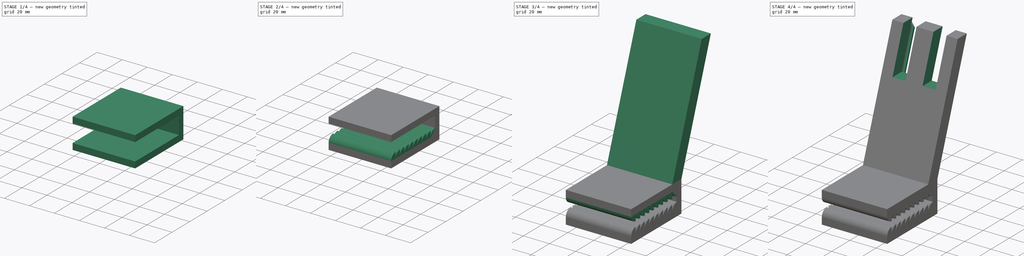
[diagram: build sequence overview — one tinted view per stage of 4, left to right]
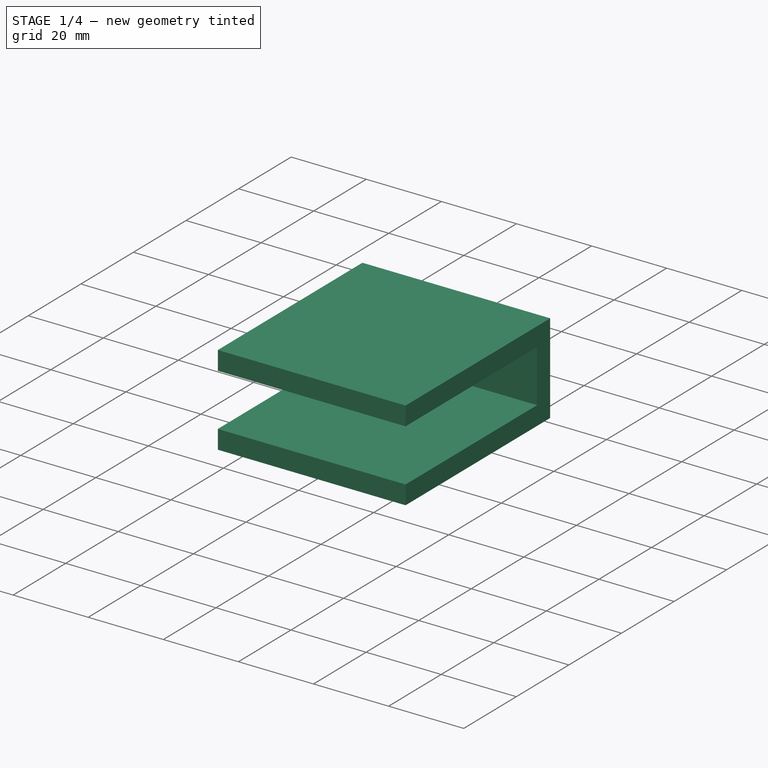
[diagram: stage 1 of 4 — iso view after this stage's code; geometry added in this stage tinted green]
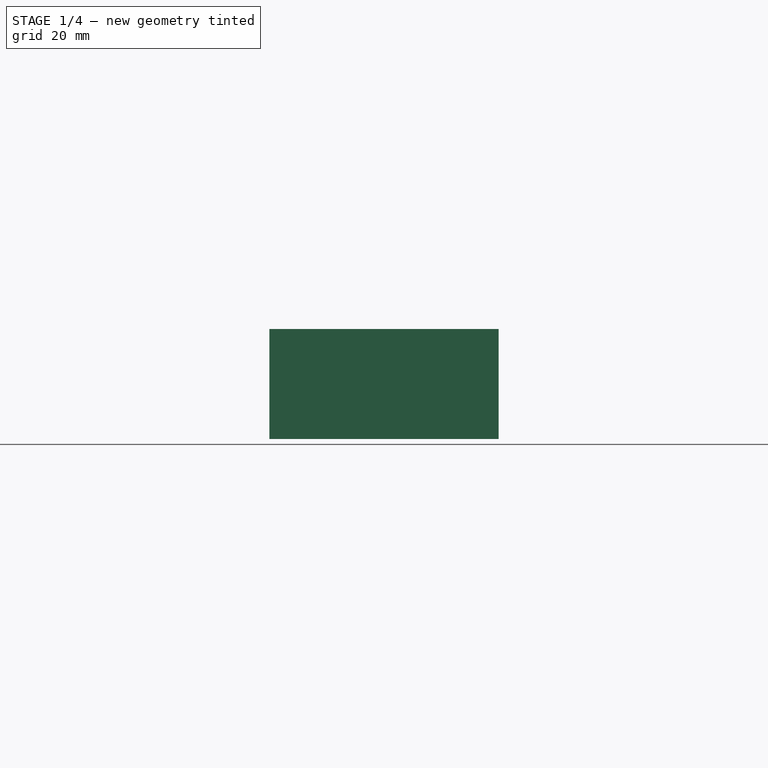
[diagram: stage 1 of 4 — front view after this stage's code; geometry added in this stage tinted green]
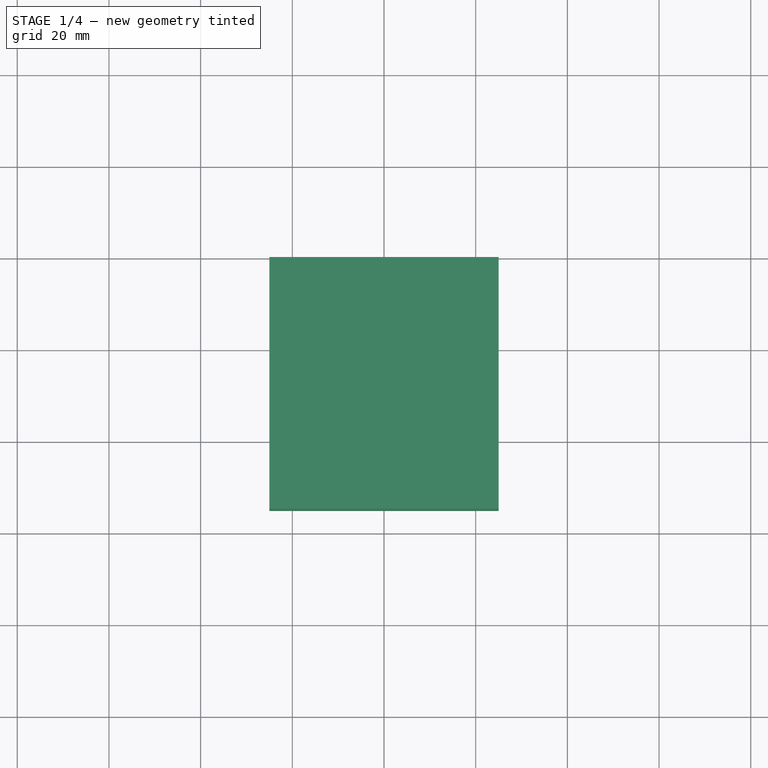
[diagram: stage 1 of 4 — top view after this stage's code; geometry added in this stage tinted green]
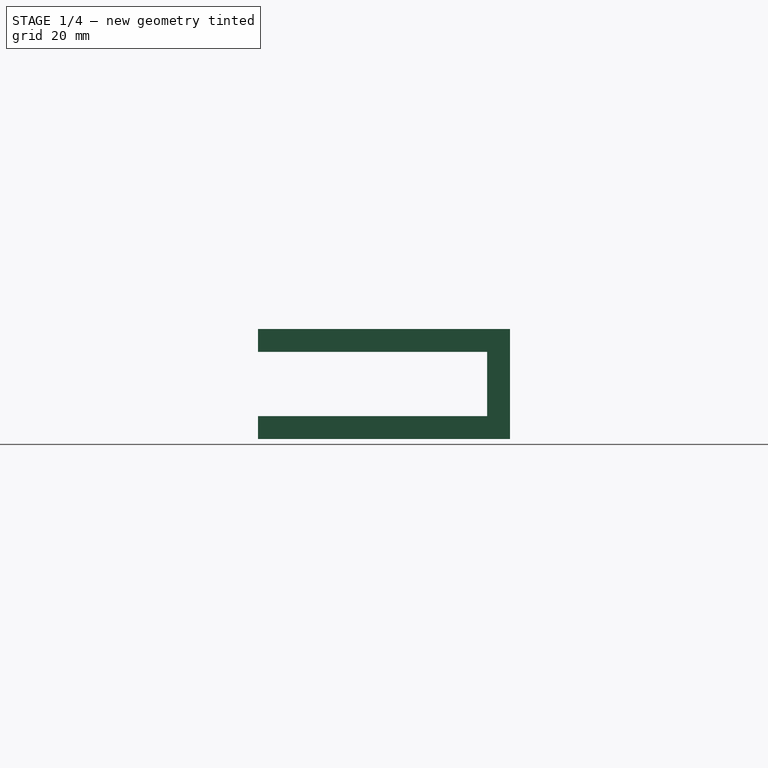
[diagram: stage 1 of 4 — right view after this stage's code; geometry added in this stage tinted green]
FCSTD DOCUMENT  (FreeCAD 1.0R39109 (Git))
Label: support_camera_v1
License: All rights reserved
LicenseURL: https://en.wikipedia.org/wiki/All_rights_reserved
objects: Sketcher::SketchObject×7, PartDesign::Pad×6, PartDesign::LinearPattern×1, PartDesign::Mirrored×1, PartDesign::Pocket×1, PartDesign::Body×1
note: 40 computed .brp shape members not serialized (recipe doc carries the construction recipe); baked Part::Feature solids carry a one-line shape summary decoded from their .brp

FEATURE [Sketcher::SketchObject] Sketch
  ArcFitTolerance = 1e-06
  AttachmentSupport = -> [XZ_Plane]
  FullyConstrained = true
  MakeInternals = false
  MapMode = 5
  Placement = pos=(0,0,0) rot=(1,0,0;1.5708rad)
  sketch-geometry (8):
    g0: LineSegment StartX=-25 StartY=12 StartZ=0 EndX=-25 EndY=-12 EndZ=0
    g1: LineSegment StartX=-25 StartY=-12 StartZ=0 EndX=25 EndY=-12 EndZ=0
    g2: LineSegment StartX=25 StartY=-12 StartZ=0 EndX=25 EndY=12 EndZ=0
    g3: LineSegment StartX=25 StartY=12 StartZ=0 EndX=-25 EndY=12 EndZ=0
    g4: GeomPoint X=25 Y=2 Z=0
    g5: GeomPoint X=25 Y=-2 Z=0
    g6: LineSegment [constr] StartX=25 StartY=2 StartZ=0 EndX=-25 EndY=2 EndZ=0
    g7: LineSegment [constr] StartX=25 StartY=-2 StartZ=0 EndX=-25 EndY=-2 EndZ=0
  constraints (19):
    c: Coincident(g0,g1)
    c: Coincident(g1,g2)
    c: Coincident(g2,g3)
    c: Coincident(g3,g0)
    c: Vertical(g0)
    c: Horizontal(g1)
    c: Symmetric(g2,g0,g-2)
    c: Symmetric(g2,g1,g-1)
    c: PointOnObject(g4,g2)
    c: Symmetric(g4,g5,g-1)
    c: Coincident(g6,g4)
    c: PointOnObject(g6,g0)
    c: Horizontal(g6)
    c: Coincident(g7,g5)
    c: PointOnObject(g7,g0)
    c: Horizontal(g7)
    c: Distance(g4,g5) = 4  'epaisseur planche'
    c: Distance(g1) = 50  'largeur support'
    c: Distance(g4,g2) = 10
FEATURE [PartDesign::Pad] Pad
  Direction = (0,-1,2e-16)
  Length = 5
  Length2 = 10
  Placement = pos=(0,0,0) rot=(1,0,0;1.5708rad)
  Profile = -> Sketch
  ReferenceAxis = -> Sketch [N_Axis]
  Refine = true
  Suppressed = false
  Type = 0
FEATURE [Sketcher::SketchObject] Sketch001
  ArcFitTolerance = 1e-06
  AttachmentSupport = -> [Pad]
  ExternalGeometry = -> [Pad]
  FullyConstrained = true
  MakeInternals = false
  MapMode = 5
  Placement = pos=(0,-5,0) rot=(1,0,0;1.5708rad)
  sketch-geometry (12):
    g0: LineSegment [constr] StartX=-25 StartY=2 StartZ=0 EndX=-25 EndY=-2 EndZ=0
    g1: LineSegment [constr] StartX=-25 StartY=-2 StartZ=0 EndX=25 EndY=-2 EndZ=0
    g2: LineSegment [constr] StartX=25 StartY=-2 StartZ=0 EndX=25 EndY=2 EndZ=0
    g3: LineSegment [constr] StartX=25 StartY=2 StartZ=0 EndX=-25 EndY=2 EndZ=0
    g4: LineSegment StartX=-25 StartY=12 StartZ=0 EndX=-25 EndY=7 EndZ=0
    g5: LineSegment StartX=-25 StartY=7 StartZ=0 EndX=25 EndY=7 EndZ=0
    g6: LineSegment StartX=25 StartY=7 StartZ=0 EndX=25 EndY=12 EndZ=0
    g7: LineSegment StartX=25 StartY=12 StartZ=0 EndX=-25 EndY=12 EndZ=0
    g8: LineSegment StartX=-25 StartY=-12 StartZ=0 EndX=25 EndY=-12 EndZ=0
    g9: LineSegment StartX=25 StartY=-12 StartZ=0 EndX=25 EndY=-7 EndZ=0
    g10: LineSegment StartX=25 StartY=-7 StartZ=0 EndX=-25 EndY=-7 EndZ=0
    g11: LineSegment StartX=-25 StartY=-7 StartZ=0 EndX=-25 EndY=-12 EndZ=0
  constraints (32):
    c: Coincident(g0,g1)
    c: Coincident(g1,g2)
    c: Coincident(g2,g3)
    c: Coincident(g3,g0)
    c: Vertical(g0)
    c: Horizontal(g1)
    c: Horizontal(g3)
    c: PointOnObject(g0,g-6)
    c: PointOnObject(g1,g-4)
    c: Distance(g2) = 4
    c: Symmetric(g2,g1,g-1)
    c: Coincident(g4,g5)
    c: Coincident(g5,g6)
    c: Coincident(g6,g7)
    c: Coincident(g7,g4)
    c: Vertical(g4)
    c: Vertical(g6)
    c: Horizontal(g5)
    c: Horizontal(g7)
    c: Coincident(g4,g-6)
    c: PointOnObject(g5,g-4)
    c: Coincident(g8,g9)
    c: Coincident(g9,g10)
    c: Coincident(g10,g11)
    c: Coincident(g11,g8)
    c: Horizontal(g8)
    c: Horizontal(g10)
    c: Vertical(g9)
    c: Vertical(g11)
    c: Coincident(g8,g-6)
    c: Symmetric(g5,g9,g-1)
    c: Distance(g6) = 5
FEATURE [PartDesign::Pad] Pad001
  BaseFeature = -> Pad
  Direction = (0,-1,2e-16)
  Length = 50
  Length2 = 10
  Placement = pos=(0,0,0) rot=(1,0,0;1.5708rad)
  Profile = -> Sketch001
  ReferenceAxis = -> Sketch001 [N_Axis]
  Refine = true
  Suppressed = false
  Type = 0
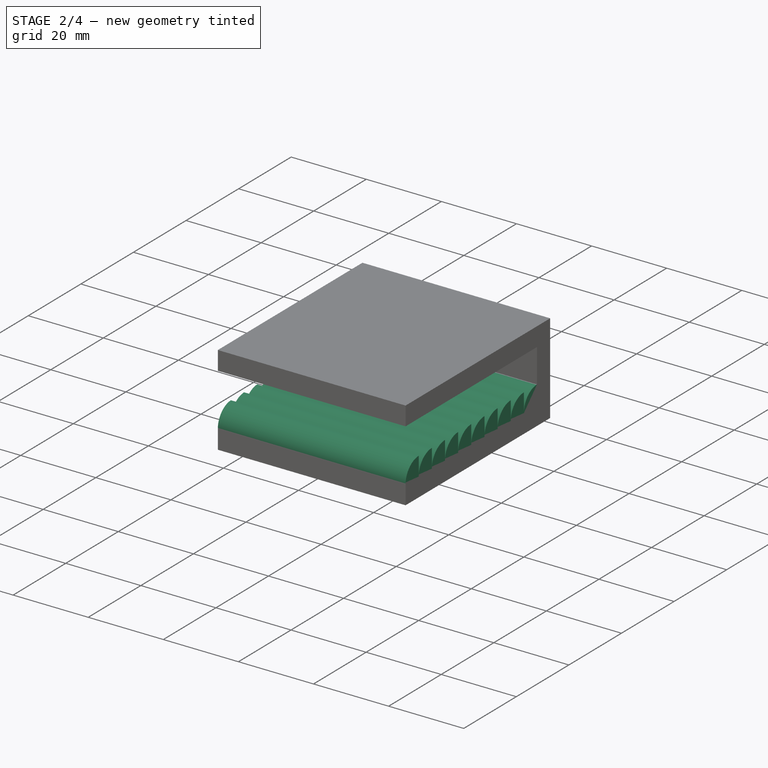
[diagram: stage 2 of 4 — iso view after this stage's code; geometry added in this stage tinted green]
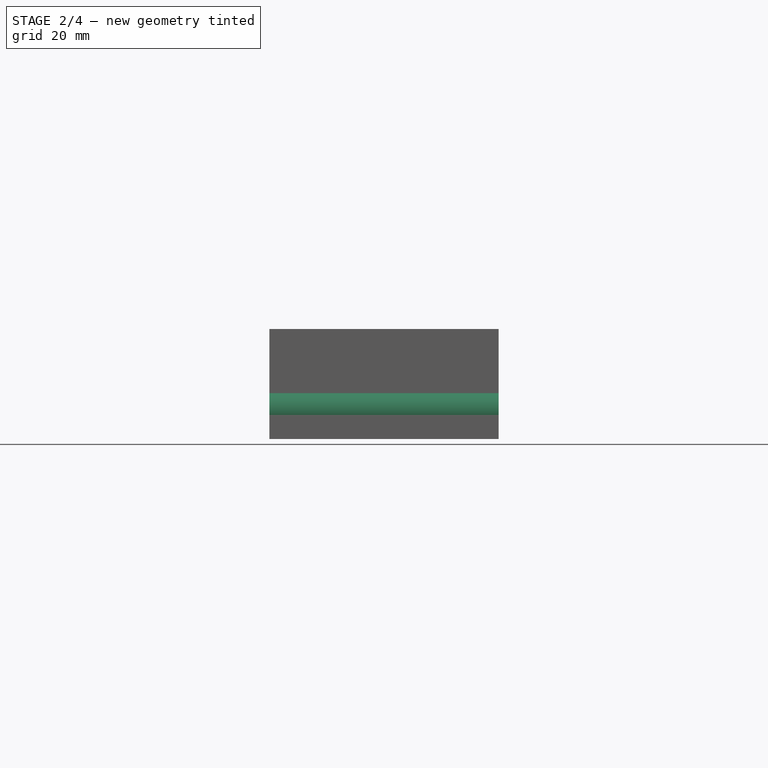
[diagram: stage 2 of 4 — front view after this stage's code; geometry added in this stage tinted green]
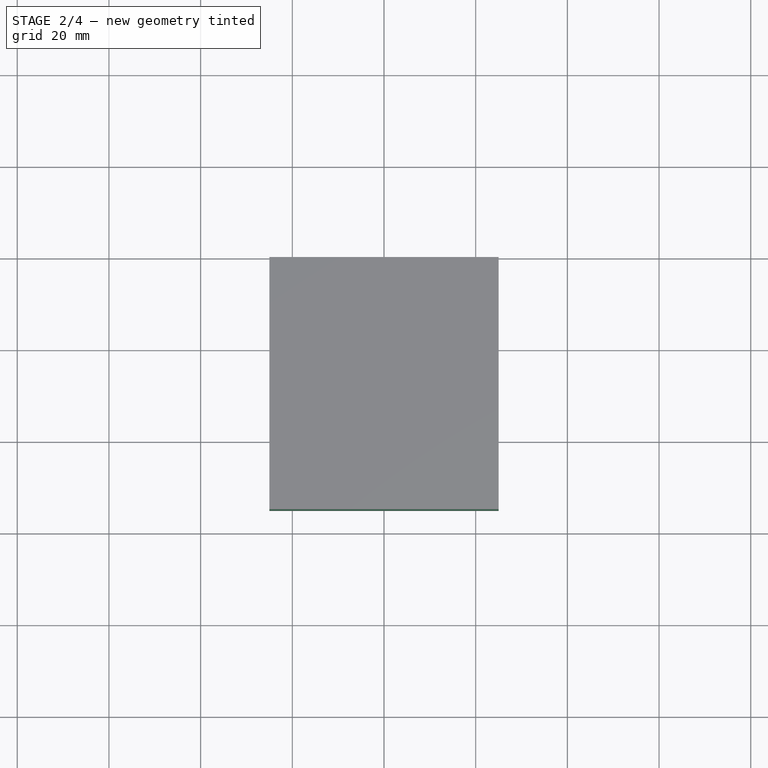
[diagram: stage 2 of 4 — top view after this stage's code; geometry added in this stage tinted green]
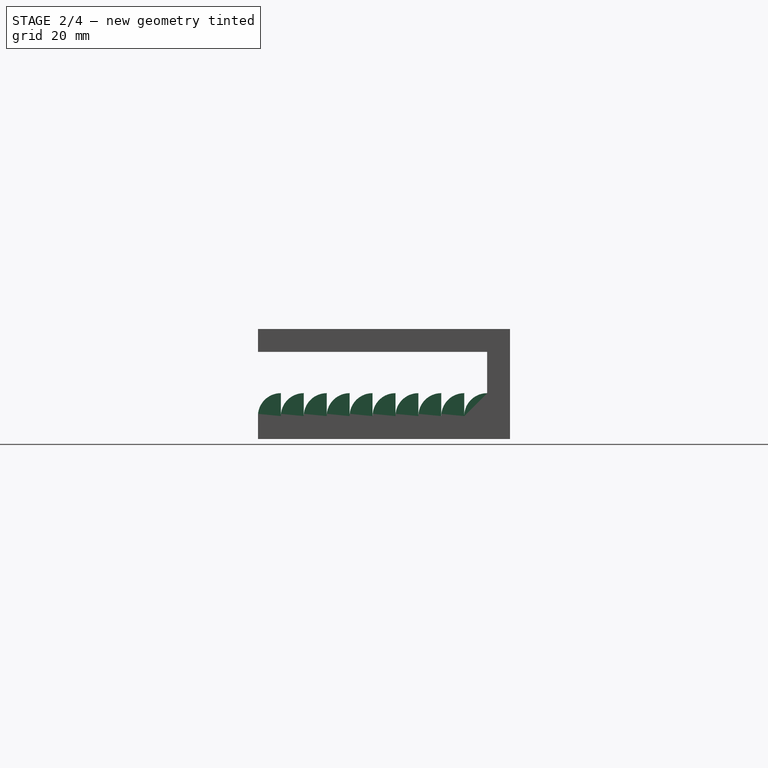
[diagram: stage 2 of 4 — right view after this stage's code; geometry added in this stage tinted green]
FEATURE [Sketcher::SketchObject] Sketch002
  ArcFitTolerance = 1e-06
  AttachmentSupport = -> [Pad001]
  ExternalGeometry = -> [Pad001]
  FullyConstrained = true
  MakeInternals = false
  MapMode = 5
  Placement = pos=(25,0,0) rot=(0.707107,0,0.707107;3.14159rad)
  sketch-geometry (3):
    g0: ArcOfCircle CenterX=-7 CenterY=50 CenterZ=0 NormalX=0 NormalY=0 NormalZ=1 AngleXU=0 Radius=5 StartAngle=5e-16 EndAngle=1.5708
    g1: LineSegment StartX=-7 StartY=50 StartZ=0 EndX=-2 EndY=50 EndZ=0
    g2: LineSegment StartX=-7 StartY=55 StartZ=0 EndX=-7 EndY=50 EndZ=0
  constraints (8):
    c: PointOnObject(g0,g-3)
    c: Coincident(g0,g-3)
    c: Coincident(g1,g0)
    c: Coincident(g1,g0)
    c: Horizontal(g1)
    c: Distance(g1) = 5
    c: Coincident(g2,g0)
    c: Coincident(g2,g0)
FEATURE [PartDesign::Pad] Pad002
  BaseFeature = -> Pad001
  Direction = (1,0,-2e-16)
  Length = 50
  Length2 = 10
  Placement = pos=(0,0,0) rot=(1,0,0;1.5708rad)
  Profile = -> Sketch002
  ReferenceAxis = -> Sketch002 [N_Axis]
  Refine = true
  Reversed = true
  Suppressed = false
  Type = 0
FEATURE [PartDesign::LinearPattern] LinearPattern
  BaseFeature = -> Pad002
  Direction = -> Y_Axis
  Length = 45
  Mode = 0
  Occurrences = 10
  Offset = 5
  Originals = -> [Pad002]
  Placement = pos=(0,0,0) rot=(1,0,0;1.5708rad)
  Refine = true
  Suppressed = false
  TransformMode = 0
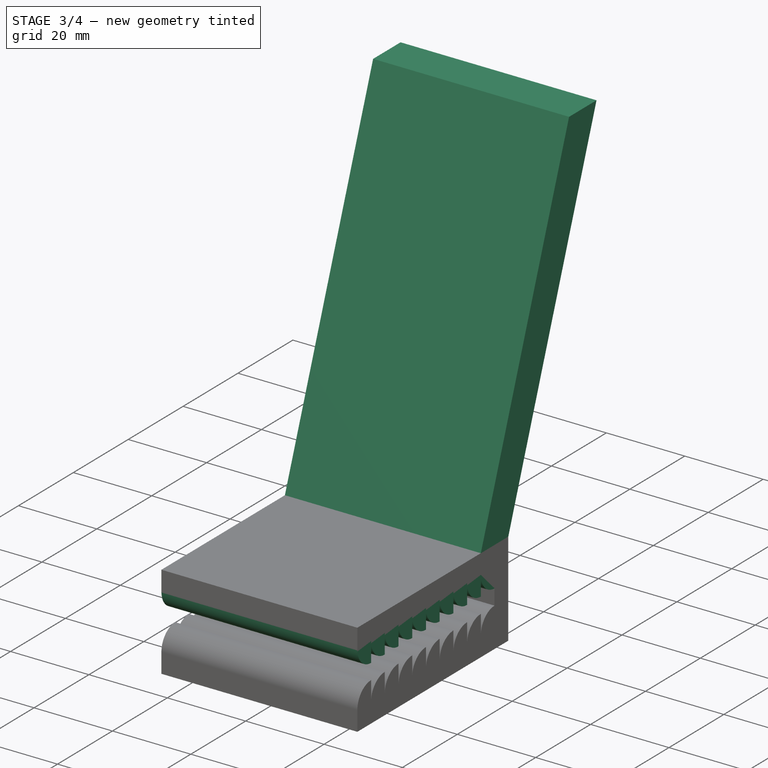
[diagram: stage 3 of 4 — iso view after this stage's code; geometry added in this stage tinted green]
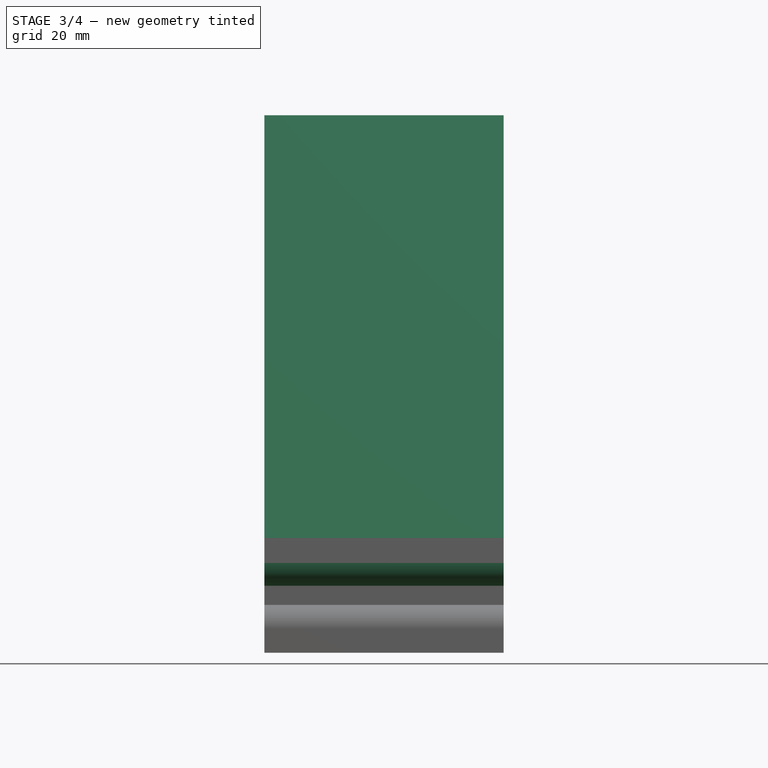
[diagram: stage 3 of 4 — front view after this stage's code; geometry added in this stage tinted green]
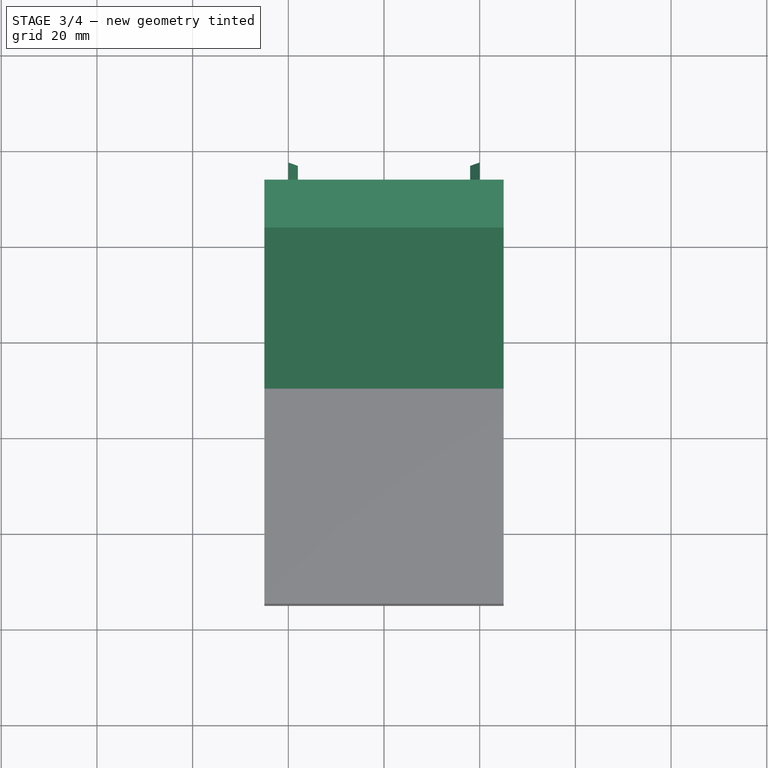
[diagram: stage 3 of 4 — top view after this stage's code; geometry added in this stage tinted green]
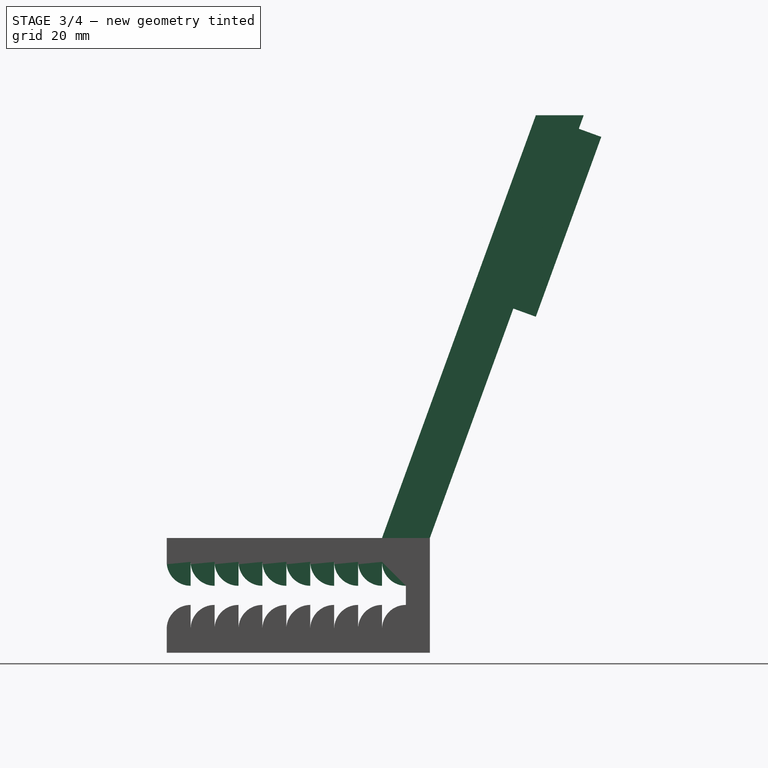
[diagram: stage 3 of 4 — right view after this stage's code; geometry added in this stage tinted green]
FEATURE [PartDesign::Mirrored] Mirrored
  BaseFeature = -> LinearPattern
  MirrorPlane = -> XY_Plane
  Originals = -> [LinearPattern]
  Placement = pos=(0,0,0) rot=(1,0,0;1.5708rad)
  Refine = true
  Suppressed = false
  TransformMode = 1
FEATURE [Sketcher::SketchObject] Sketch003
  ArcFitTolerance = 1e-06
  AttachmentSupport = -> [Mirrored]
  ExternalGeometry = -> [Mirrored]
  FullyConstrained = false
  MakeInternals = false
  MapMode = 5
  Placement = pos=(25,0,0) rot=(0.707107,0,0.707107;3.14159rad)
  sketch-geometry (4):
    g0: LineSegment StartX=12 StartY=10 StartZ=0 EndX=100.354 EndY=-22.1583 EndZ=0
    g1: LineSegment StartX=100.354 StartY=-22.1583 StartZ=0 EndX=100.354 EndY=-32.1583 EndZ=0
    g2: LineSegment StartX=100.354 StartY=-32.1583 StartZ=0 EndX=12 EndY=0 EndZ=0
    g3: LineSegment StartX=12 StartY=10 StartZ=0 EndX=12 EndY=0 EndZ=0
  constraints (10):
    c: Coincident(g1,g0)
    c: Coincident(g2,g1)
    c: Coincident(g3,g0)
    c: Coincident(g3,g2)
    c: Parallel(g0,g2)
    c: Coincident(g2,g-3)
    c: PointOnObject(g0,g-4)
    c: Distance(g0,g2) = 10
    c: Equal(g3,g1)
    c: Angle(g-1,g2) = 2.79253
FEATURE [PartDesign::Pad] Pad003
  BaseFeature = -> Mirrored
  Direction = (1,0,-2e-16)
  Length = 50
  Length2 = 10
  Placement = pos=(0,0,0) rot=(1,0,0;1.5708rad)
  Profile = -> Sketch003
  ReferenceAxis = -> Sketch003 [N_Axis]
  Refine = true
  Reversed = true
  Suppressed = false
  Type = 0
FEATURE [Sketcher::SketchObject] Sketch004
  ArcFitTolerance = 1e-06
  AttachmentSupport = -> [Pad003]
  ExternalGeometry = -> [Pad003]
  FullyConstrained = true
  MakeInternals = false
  MapMode = 5
  Placement = pos=(3e-16,-3.85673,1.40373) rot=(-1,0,0;1.91986rad)
  sketch-geometry (12):
    g0: LineSegment StartX=-18 StartY=-64.301 StartZ=0 EndX=-18 EndY=-100.301 EndZ=0
    g1: LineSegment [constr] StartX=-18 StartY=-100.301 StartZ=0 EndX=18 EndY=-100.301 EndZ=0
    g2: LineSegment StartX=18 StartY=-100.301 StartZ=0 EndX=18 EndY=-64.301 EndZ=0
    g3: LineSegment StartX=18 StartY=-64.301 StartZ=0 EndX=-18 EndY=-64.301 EndZ=0
    g4: LineSegment StartX=-20 StartY=-62.301 StartZ=0 EndX=-20 EndY=-102.301 EndZ=0
    g5: LineSegment [constr] StartX=-20 StartY=-102.301 StartZ=0 EndX=20 EndY=-102.301 EndZ=0
    g6: LineSegment StartX=20 StartY=-102.301 StartZ=0 EndX=20 EndY=-62.301 EndZ=0
    g7: LineSegment StartX=20 StartY=-62.301 StartZ=0 EndX=-20 EndY=-62.301 EndZ=0
    g8: LineSegment [constr] StartX=-18 StartY=-64.301 StartZ=0 EndX=-20 EndY=-64.301 EndZ=0
    g9: LineSegment [constr] StartX=18 StartY=-64.301 StartZ=0 EndX=18 EndY=-62.301 EndZ=0
    g10: LineSegment StartX=-20 StartY=-102.301 StartZ=0 EndX=-18 EndY=-100.301 EndZ=0
    g11: LineSegment StartX=18 StartY=-100.301 StartZ=0 EndX=20 EndY=-102.301 EndZ=0
  constraints (32):
    c: Coincident(g0,g1)
    c: Coincident(g1,g2)
    c: Coincident(g2,g3)
    c: Coincident(g3,g0)
    c: Vertical(g0)
    c: Vertical(g2)
    c: Horizontal(g1)
    c: Symmetric(g2,g0,g-2)
    c: Distance(g3) = 36
    c: Equal(g3,g2)
    c: DistanceY(g-4,g1) = 5
    c: Coincident(g4,g5)
    c: Coincident(g5,g6)
    c: Coincident(g6,g7)
    c: Coincident(g7,g4)
    c: Vertical(g4)
    c: Vertical(g6)
    c: Horizontal(g5)
    c: Symmetric(g6,g4,g-2)
    c: Equal(g7,g6)
    c: DistanceX(g4,g0) = 2
    c: Coincident(g8,g0)
    c: PointOnObject(g8,g4)
    c: Horizontal(g8)
    c: Coincident(g9,g2)
    c: PointOnObject(g9,g7)
    c: Vertical(g9)
    c: Equal(g8,g9)
    c: Coincident(g10,g4)
    c: Coincident(g10,g0)
    c: Coincident(g11,g1)
    c: Coincident(g11,g5)
FEATURE [PartDesign::Pad] Pad004
  BaseFeature = -> Pad003
  Direction = (0,0.939693,-0.34202)
  Length = 5
  Length2 = 10
  Placement = pos=(0,0,0) rot=(1,0,0;1.5708rad)
  Profile = -> Sketch004
  ReferenceAxis = -> Sketch004 [N_Axis]
  Refine = true
  Suppressed = false
  Type = 0
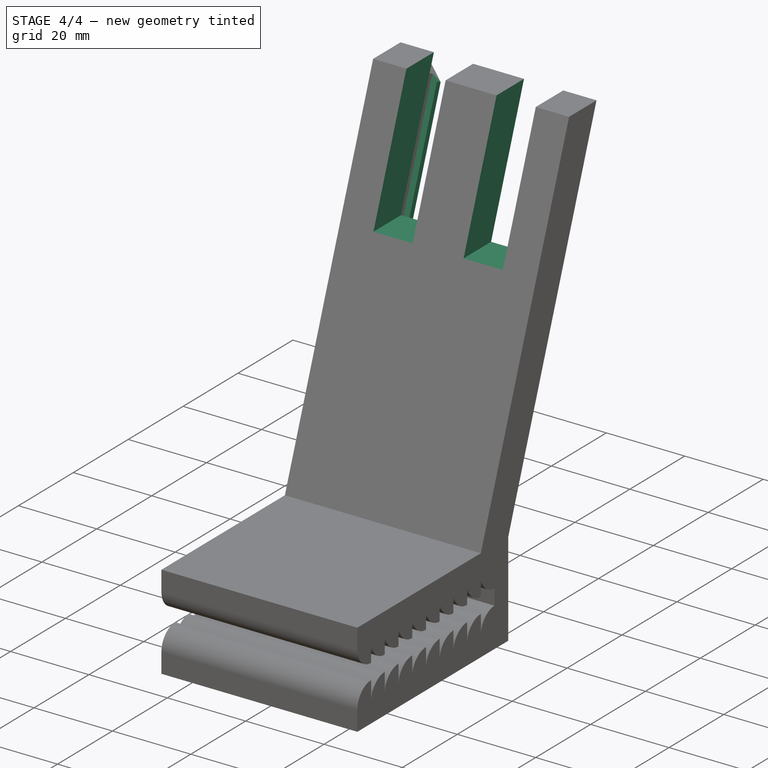
[diagram: stage 4 of 4 — iso view after this stage's code; geometry added in this stage tinted green]
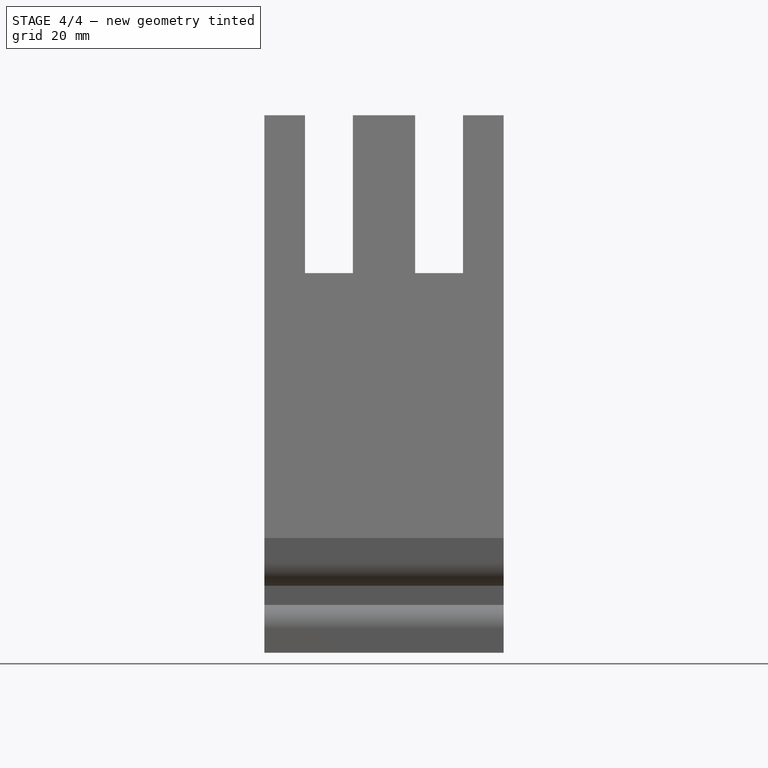
[diagram: stage 4 of 4 — front view after this stage's code; geometry added in this stage tinted green]
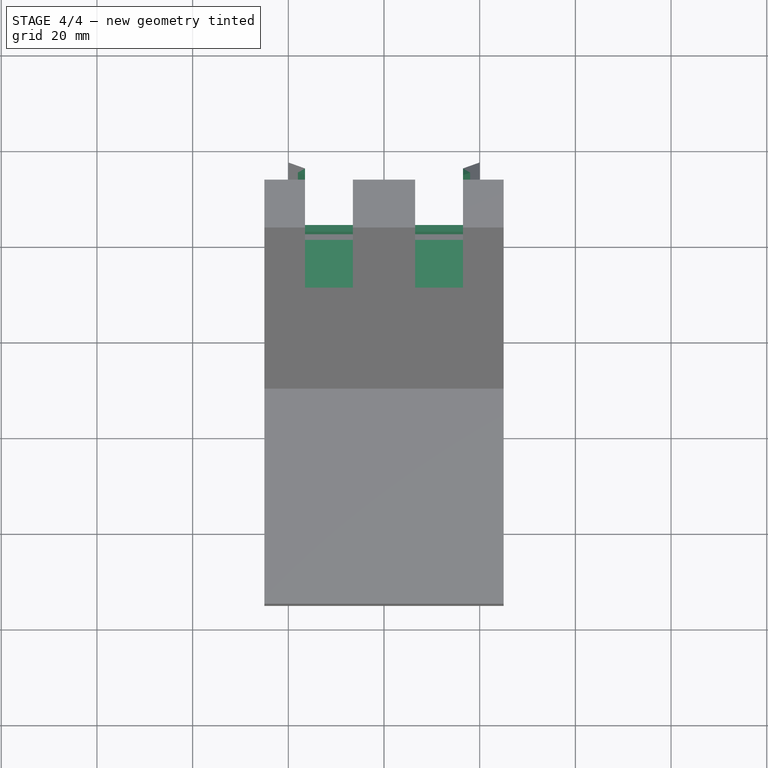
[diagram: stage 4 of 4 — top view after this stage's code; geometry added in this stage tinted green]
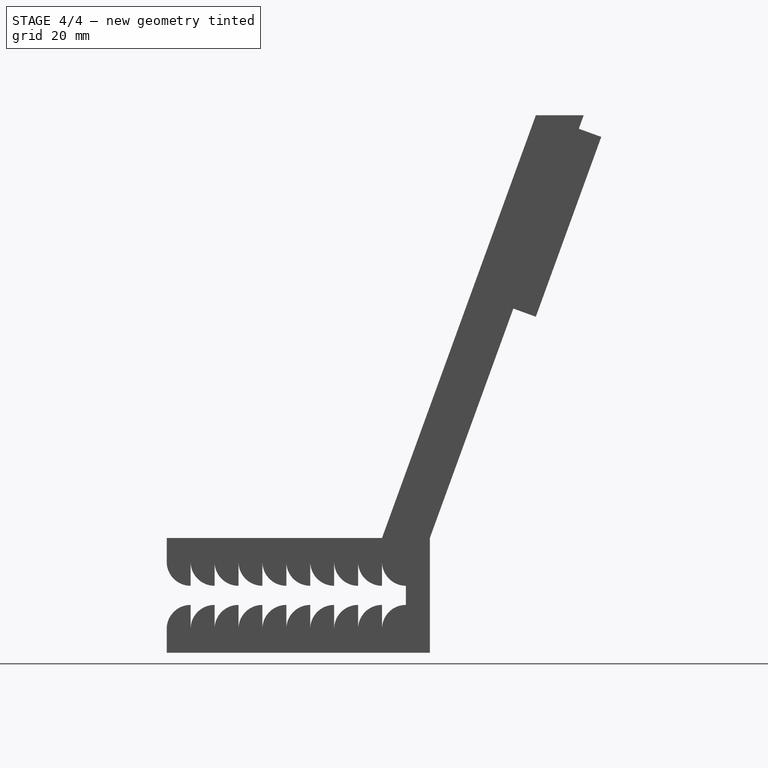
[diagram: stage 4 of 4 — right view after this stage's code; geometry added in this stage tinted green]
FEATURE [Sketcher::SketchObject] Sketch005
  ArcFitTolerance = 1e-06
  AttachmentSupport = -> [Pad004]
  ExternalGeometry = -> [Pad004]
  FullyConstrained = true
  MakeInternals = false
  MapMode = 5
  Placement = pos=(0,0.841737,-0.306367) rot=(-1,0,0;1.91986rad)
  sketch-geometry (11):
    g0: LineSegment StartX=-16.5 StartY=-98.801 StartZ=0 EndX=-16.5 EndY=-65.801 EndZ=0
    g1: LineSegment StartX=-16.5 StartY=-65.801 StartZ=0 EndX=16.5 EndY=-65.801 EndZ=0
    g2: LineSegment StartX=16.5 StartY=-65.801 StartZ=0 EndX=16.5 EndY=-98.801 EndZ=0
    g3: LineSegment StartX=16.5 StartY=-98.801 StartZ=0 EndX=18 EndY=-100.301 EndZ=0
    g4: LineSegment StartX=18 StartY=-100.301 StartZ=0 EndX=18 EndY=-64.301 EndZ=0
    g5: LineSegment StartX=18 StartY=-64.301 StartZ=0 EndX=-18 EndY=-64.301 EndZ=0
    g6: LineSegment StartX=-18 StartY=-64.301 StartZ=0 EndX=-18 EndY=-100.301 EndZ=0
    g7: LineSegment StartX=-18 StartY=-100.301 StartZ=0 EndX=-16.5 EndY=-98.801 EndZ=0
    g8: LineSegment [constr] StartX=-16.5 StartY=-65.801 StartZ=0 EndX=-16.5 EndY=-64.301 EndZ=0
    g9: LineSegment [constr] StartX=-16.5 StartY=-65.801 StartZ=0 EndX=-18 EndY=-65.801 EndZ=0
    g10: LineSegment [constr] StartX=16.5 StartY=-65.801 StartZ=0 EndX=18 EndY=-65.801 EndZ=0
  constraints (28):
    c: Vertical(g0)
    c: Coincident(g0,g1)
    c: Horizontal(g1)
    c: Coincident(g1,g2)
    c: Vertical(g2)
    c: Coincident(g2,g3)
    c: Coincident(g3,g-5)
    c: Coincident(g3,g4)
    c: Coincident(g4,g-5)
    c: Coincident(g4,g5)
    c: Coincident(g5,g-4)
    c: Coincident(g5,g6)
    c: Coincident(g6,g-3)
    c: Coincident(g6,g7)
    c: Coincident(g7,g0)
    c: Coincident(g8,g0)
    c: PointOnObject(g8,g5)
    c: Vertical(g8)
    c: Coincident(g9,g0)
    c: PointOnObject(g9,g6)
    c: Horizontal(g9)
    c: Coincident(g10,g1)
    c: PointOnObject(g10,g4)
    c: Horizontal(g10)
    c: Equal(g8,g9)
    c: Distance(g8) = 1.5
    c: Symmetric(g0,g2,g-2)
    c: Parallel(g7,g-6)
FEATURE [PartDesign::Pad] Pad005
  BaseFeature = -> Pad004
  Direction = (0,0.939693,-0.34202)
  Length = 1.5
  Length2 = 10
  Placement = pos=(0,0,0) rot=(1,0,0;1.5708rad)
  Profile = -> Sketch005
  ReferenceAxis = -> Sketch005 [N_Axis]
  Refine = true
  Reversed = true
  Suppressed = false
  Type = 0
FEATURE [Sketcher::SketchObject] Sketch006
  ArcFitTolerance = 1e-06
  AttachmentSupport = -> [Pad005]
  ExternalGeometry = -> [Pad005]
  FullyConstrained = false
  MakeInternals = false
  MapMode = 5
  Placement = pos=(2.23e-14,1.9966e-12,100.354) rot=(0,0,1;3.14159rad)
  sketch-geometry (8):
    g0: LineSegment StartX=-16.5 StartY=-2.59735 StartZ=0 EndX=-16.5 EndY=-40.6453 EndZ=0
    g1: LineSegment StartX=-16.5 StartY=-40.6453 StartZ=0 EndX=-6.5 EndY=-40.6453 EndZ=0
    g2: LineSegment StartX=-6.5 StartY=-40.6453 StartZ=0 EndX=-6.5 EndY=-2.59735 EndZ=0
    g3: LineSegment StartX=-6.5 StartY=-2.59735 StartZ=0 EndX=-16.5 EndY=-2.59735 EndZ=0
    g4: LineSegment StartX=6.5 StartY=-2.59735 StartZ=0 EndX=6.5 EndY=-40.6453 EndZ=0
    g5: LineSegment StartX=6.5 StartY=-40.6453 StartZ=0 EndX=16.5 EndY=-40.6453 EndZ=0
    g6: LineSegment StartX=16.5 StartY=-40.6453 StartZ=0 EndX=16.5 EndY=-2.59735 EndZ=0
    g7: LineSegment StartX=16.5 StartY=-2.59735 StartZ=0 EndX=6.5 EndY=-2.59735 EndZ=0
  constraints (20):
    c: Coincident(g0,g1)
    c: Coincident(g1,g2)
    c: Coincident(g2,g3)
    c: Coincident(g3,g0)
    c: Vertical(g0)
    c: Vertical(g2)
    c: Horizontal(g1)
    c: Horizontal(g3)
    c: PointOnObject(g-3,g0)
    c: DistanceX(g1,g1) = 10
    c: Coincident(g4,g5)
    c: Coincident(g5,g6)
    c: Coincident(g6,g7)
    c: Coincident(g7,g4)
    c: Vertical(g6)
    c: Horizontal(g5)
    c: Horizontal(g7)
    c: PointOnObject(g-4,g6)
    c: Symmetric(g4,g1,g-2)
    c: Symmetric(g4,g2,g-2)
FEATURE [PartDesign::Pocket] Pocket
  BaseFeature = -> Pad005
  Direction = (0,-1.99e-14,-1)
  Length = 33
  Length2 = 5
  Placement = pos=(0,0,0) rot=(1,0,0;1.5708rad)
  Profile = -> Sketch006
  ReferenceAxis = -> Sketch006 [N_Axis]
  Refine = true
  Suppressed = false
  Type = 0
FEATURE [PartDesign::Body] Body
  AllowCompound = false
  Group = -> [Sketch,Pad,Sketch001,Pad001,Sketch002,Pad002,LinearPattern,Mirrored,Sketch003,Pad003,Sketch004,Pad004,Sketch005,Pad005,Sketch006,Pocket]
  Origin = -> Origin
  Tip = -> Pocket
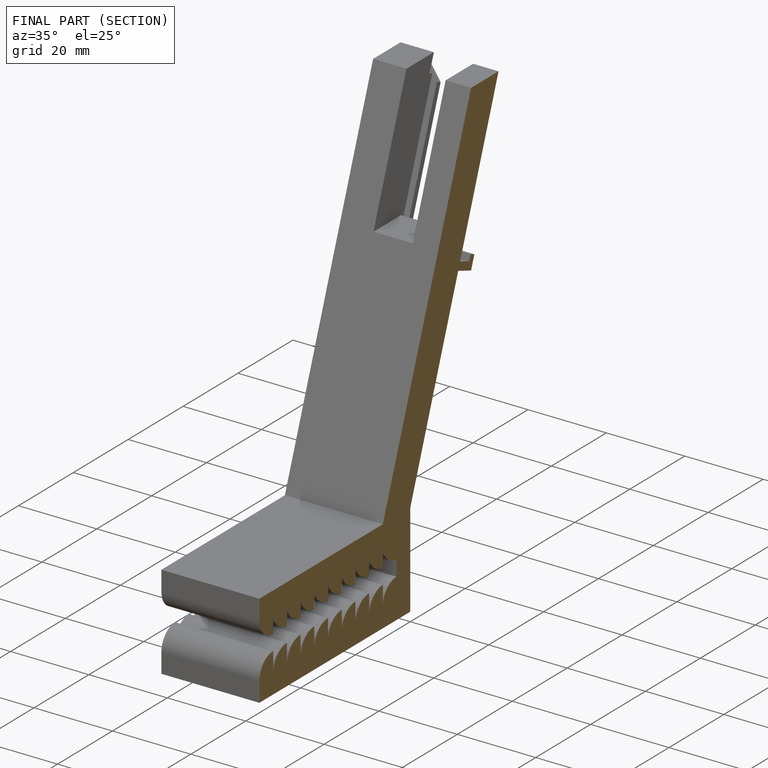
[diagram: finished part — half-section view (interior)]
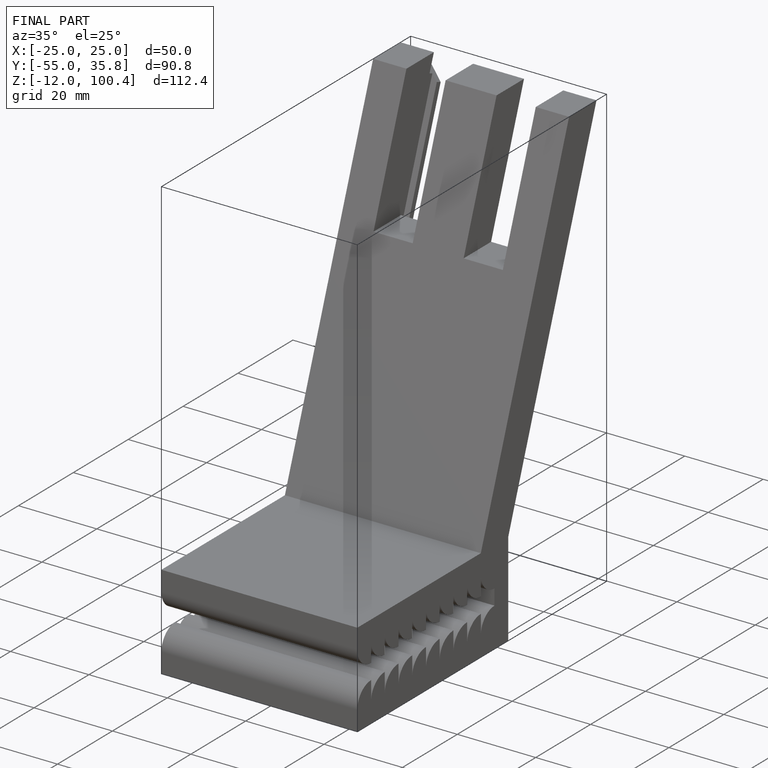
[diagram: finished part — iso view with bounding-box wireframe]
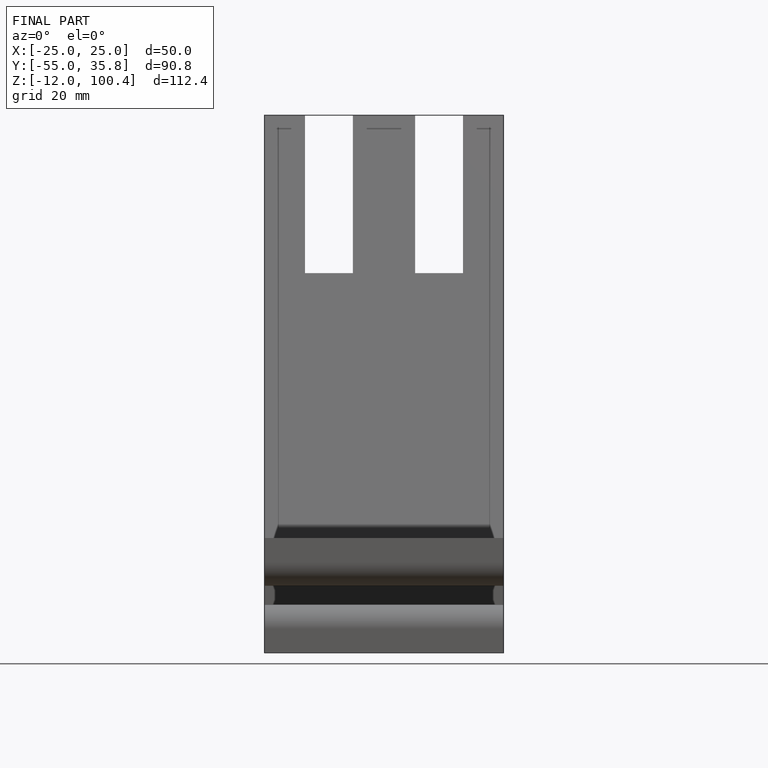
[diagram: finished part — front view with bounding-box wireframe]
